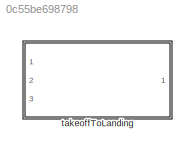
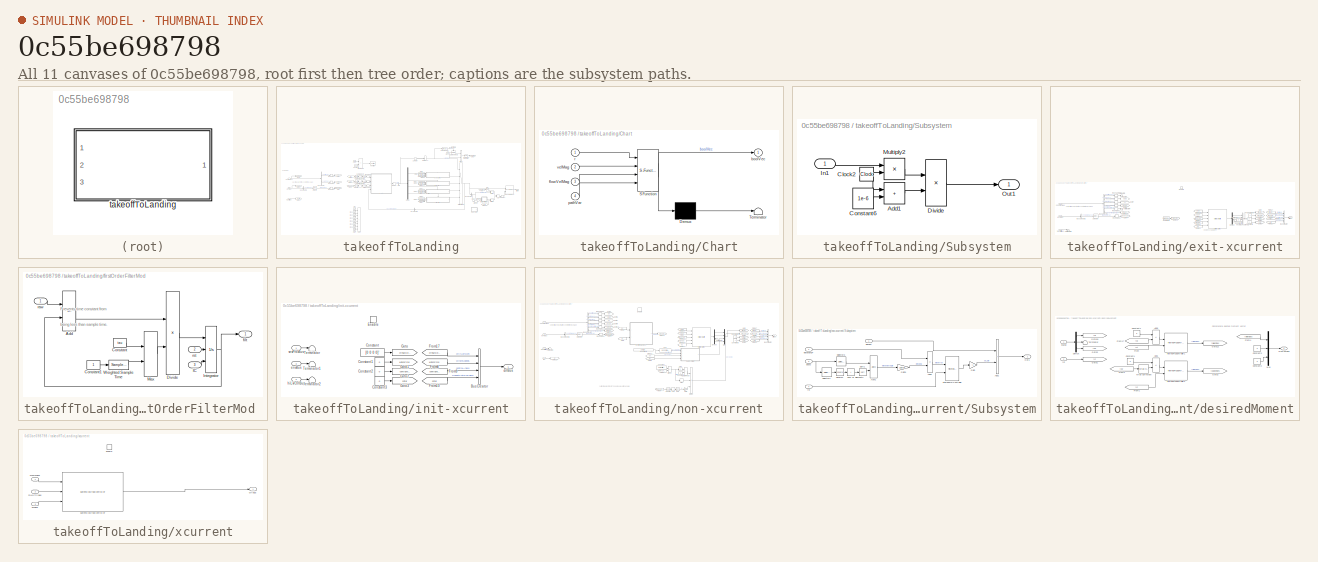
[diagram: thumbnail index - all 11 canvases of the model, root first then tree order]
MODEL slx_0c55be698798
KIND library
CONFIG AbsTol = auto
CONFIG EnableMultiTasking = off
CONFIG FixedStep = auto
CONFIG MaxStep = auto
CONFIG MinStep = auto
CONFIG RelTol = 1e-3
CONFIG SampleTimeConstraint = Unconstrained
CONFIG Solver = VariableStepAuto
CONFIG SolverName = VariableStepAuto
CONFIG StartTime = 0.0
CONFIG StopTime = 10.0
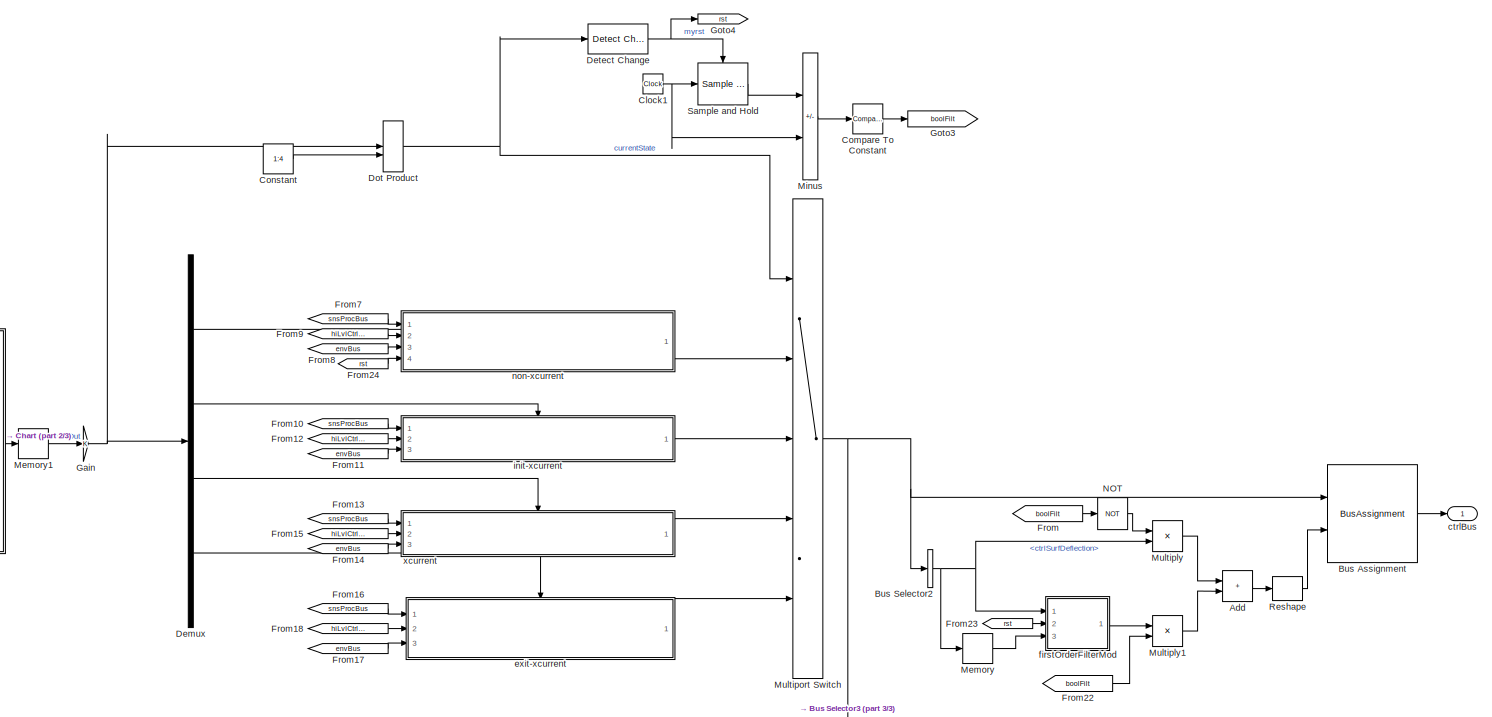
[diagram: takeoffToLanding - part 1/3, middle right region]
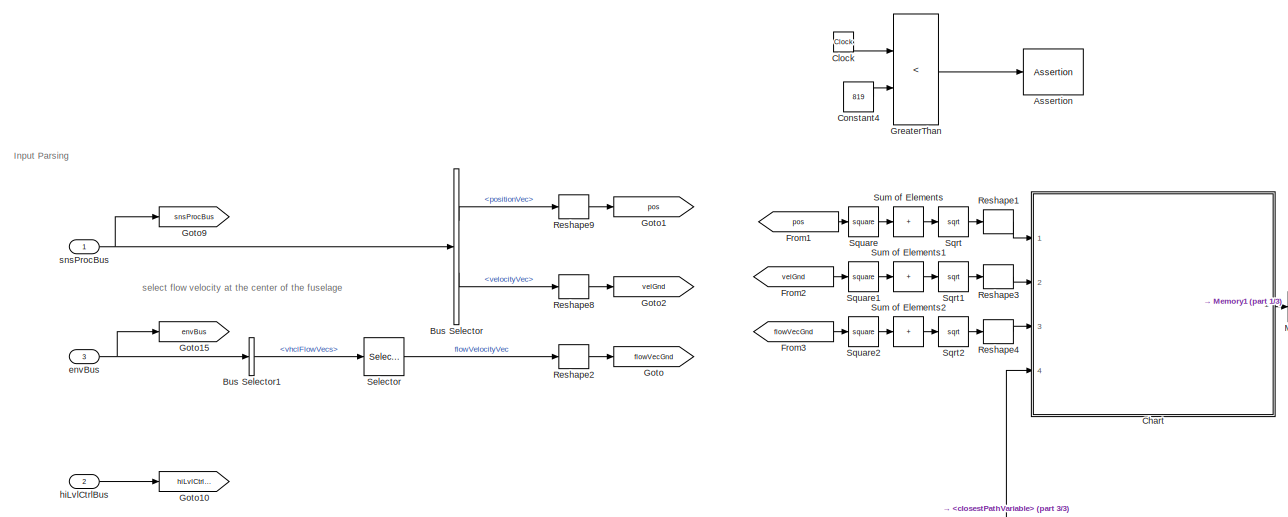
[diagram: takeoffToLanding - part 2/3, middle left region]
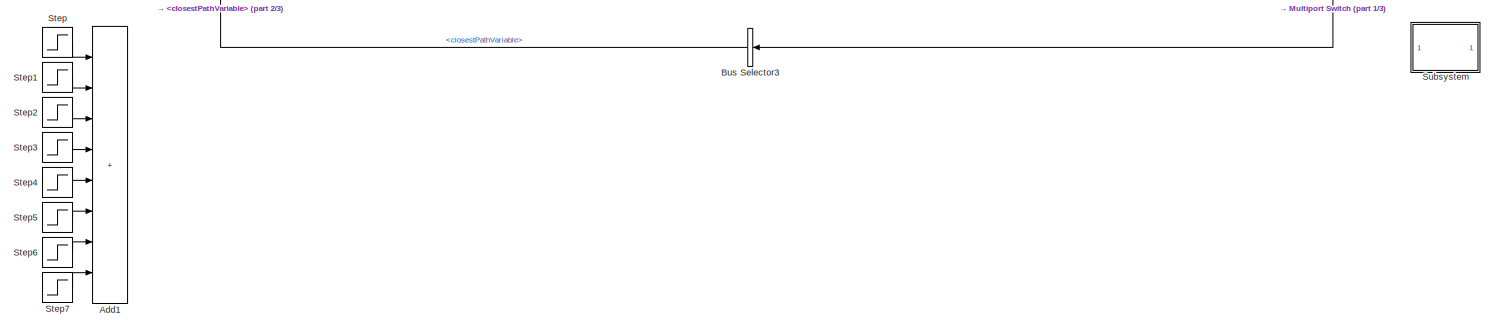
[diagram: takeoffToLanding - part 3/3, bottom center region]
BLOCK [SubSystem] takeoffToLanding
  InitFcn = initializeBussesFromBlock(gcb)
  LoadFcn = initializeBussesFromBlock(gcb)
  MinAlgLoopOccurrences = on
  Ports = [3, 1]
  RequestExecContextInheritance = off
  StartFcn = initializeBussesFromBlock(gcb)
  VariantControl = strcmpi(FLIGHTCONTROLLER,'takeoffToLanding')
BLOCK [Sum] takeoffToLanding/Add
  IconShape = rectangular
  Ports = [2, 1]
BLOCK [Sum] takeoffToLanding/Add1
  Commented = on
  IconShape = rectangular
  Inputs = ++++++++
  Ports = [8, 1]
BLOCK [Assertion] takeoffToLanding/Assertion
  AssertionFailFcn = set_param('OCTModel','SimulationCommand','pause')
  Enabled = off
  StopWhenAssertionFail = off
BLOCK [BusAssignment] takeoffToLanding/Bus Assignment
  AssignedSignals = ctrlSurfDeflection
  Ports = [2, 1]
BLOCK [BusSelector] takeoffToLanding/Bus Selector
  OutputSignals = positionVec,velocityVec
  Ports = [1, 2]
BLOCK [BusSelector] takeoffToLanding/Bus Selector1
  OutputSignals = vhclFlowVecs
  Ports = [1, 1]
BLOCK [BusSelector] takeoffToLanding/Bus Selector2
  OutputSignals = ctrlSurfDeflection
  Ports = [1, 1]
BLOCK [BusSelector] takeoffToLanding/Bus Selector3
  OutputSignals = closestPathVariable
  Ports = [1, 1]
BLOCK [SubSystem] takeoffToLanding/Chart
  ErrorFcn = Stateflow.Translate.translate
  PermitHierarchicalResolution = ExplicitOnly
  Ports = [4, 1]
  RequestExecContextInheritance = off
  SFBlockType = Chart
  TreatAsAtomicUnit = on
BLOCK [Demux] takeoffToLanding/Chart/ Demux 
  Outputs = 1
  Ports = [1, 1]
BLOCK [S-Function] takeoffToLanding/Chart/ SFunction 
  EnableBusSupport = off
  FunctionName = sf_sfun
  Parameters = maxR,nonCrossSpoolGain
  PortCounts = [4 2]
  Ports = [4, 2]
  SFcnIsStateOwnerBlock = off
  SFunctionDeploymentMode = off
  Tag = Stateflow S-Function 5
BLOCK [Terminator] takeoffToLanding/Chart/ Terminator 
BLOCK [Outport] takeoffToLanding/Chart/boolVec
  VectorParamsAs1DForOutWhenUnconnected = off
BLOCK [Inport] takeoffToLanding/Chart/flowVelMag
  Port = 3
BLOCK [Inport] takeoffToLanding/Chart/pathVar
  Port = 4
BLOCK [Inport] takeoffToLanding/Chart/r
BLOCK [Inport] takeoffToLanding/Chart/velMag
  Port = 2
BLOCK [Clock] takeoffToLanding/Clock
BLOCK [Clock] takeoffToLanding/Clock1
BLOCK [Reference] takeoffToLanding/Compare To Constant  REF=simulink/Logic and Bit
Operations/Compare
To Constant
  Ports = [1, 1]
  SourceBlock = simulink/Logic and Bit\nOperations/Compare\nTo Constant
  SourceProductBaseCode = SL
  SourceType = Compare To Constant
BLOCK [Constant] takeoffToLanding/Constant
  Value = 1:4
BLOCK [Constant] takeoffToLanding/Constant4
  Value = 819
BLOCK [Demux] takeoffToLanding/Demux
  Ports = [1, 4]
BLOCK [Reference] takeoffToLanding/Detect Change  REF=simulink/Logic and Bit
Operations/Detect
Change
  Ports = [1, 1]
  SourceBlock = simulink/Logic and Bit\nOperations/Detect\nChange
  SourceProductBaseCode = SL
  SourceType = Detect Change
BLOCK [DotProduct] takeoffToLanding/Dot Product
  OutDataTypeStr = Inherit: Inherit via internal rule
BLOCK [From] takeoffToLanding/From
  GotoTag = boolFilt
BLOCK [From] takeoffToLanding/From1
  GotoTag = pos
BLOCK [From] takeoffToLanding/From10
  GotoTag = snsProcBus
BLOCK [From] takeoffToLanding/From11
  GotoTag = envBus
BLOCK [From] takeoffToLanding/From12
  GotoTag = hiLvlCtrlBus
BLOCK [From] takeoffToLanding/From13
  GotoTag = snsProcBus
BLOCK [From] takeoffToLanding/From14
  GotoTag = envBus
BLOCK [From] takeoffToLanding/From15
  GotoTag = hiLvlCtrlBus
BLOCK [From] takeoffToLanding/From16
  GotoTag = snsProcBus
BLOCK [From] takeoffToLanding/From17
  GotoTag = envBus
BLOCK [From] takeoffToLanding/From18
  GotoTag = hiLvlCtrlBus
BLOCK [From] takeoffToLanding/From2
  GotoTag = velGnd
BLOCK [From] takeoffToLanding/From22
  GotoTag = boolFilt
BLOCK [From] takeoffToLanding/From23
  GotoTag = rst
BLOCK [From] takeoffToLanding/From24
  GotoTag = rst
BLOCK [From] takeoffToLanding/From3
  GotoTag = flowVecGnd
BLOCK [From] takeoffToLanding/From7
  GotoTag = snsProcBus
BLOCK [From] takeoffToLanding/From8
  GotoTag = envBus
BLOCK [From] takeoffToLanding/From9
  GotoTag = hiLvlCtrlBus
BLOCK [Gain] takeoffToLanding/Gain
BLOCK [Goto] takeoffToLanding/Goto
  GotoTag = flowVecGnd
BLOCK [Goto] takeoffToLanding/Goto1
  GotoTag = pos
BLOCK [Goto] takeoffToLanding/Goto10
  GotoTag = hiLvlCtrlBus
BLOCK [Goto] takeoffToLanding/Goto15
  GotoTag = envBus
BLOCK [Goto] takeoffToLanding/Goto2
  GotoTag = velGnd
BLOCK [Goto] takeoffToLanding/Goto3
  GotoTag = boolFilt
BLOCK [Goto] takeoffToLanding/Goto4
  GotoTag = rst
BLOCK [Goto] takeoffToLanding/Goto9
  GotoTag = snsProcBus
BLOCK [RelationalOperator] takeoffToLanding/GreaterThan
  InputSameDT = off
  Operator = <
  OutDataTypeStr = boolean
  Ports = [2, 1]
  RndMeth = Simplest
BLOCK [Memory] takeoffToLanding/Memory
  InitialCondition = [0;0;0;0]
BLOCK [Memory] takeoffToLanding/Memory1
  InitialCondition = [1 0 0 0]
BLOCK [Sum] takeoffToLanding/Minus
  IconShape = rectangular
  Inputs = -+
  Ports = [2, 1]
BLOCK [Product] takeoffToLanding/Multiply
  Ports = [2, 1]
BLOCK [Product] takeoffToLanding/Multiply1
  Ports = [2, 1]
BLOCK [MultiPortSwitch] takeoffToLanding/Multiport Switch
  DataPortIndices = {1,2,3,4,5,6}
  DiagnosticForDefault = Warning
  InputSameDT = off
  Inputs = 4
  Ports = [5, 1]
  SaturateOnIntegerOverflow = off
BLOCK [Logic] takeoffToLanding/NOT
  AllPortsSameDT = off
  Operator = NOT
  OutDataTypeStr = boolean
  Ports = [1, 1]
BLOCK [Reshape] takeoffToLanding/Reshape
  Ports = [1, 1]
BLOCK [Reshape] takeoffToLanding/Reshape1
  Ports = [1, 1]
BLOCK [Reshape] takeoffToLanding/Reshape2
  OutputDimensionality = Column vector (2-D)
  Ports = [1, 1]
BLOCK [Reshape] takeoffToLanding/Reshape3
  Ports = [1, 1]
BLOCK [Reshape] takeoffToLanding/Reshape4
  Ports = [1, 1]
BLOCK [Reshape] takeoffToLanding/Reshape8
  OutputDimensionality = Column vector (2-D)
  Ports = [1, 1]
BLOCK [Reshape] takeoffToLanding/Reshape9
  OutputDimensionality = Column vector (2-D)
  Ports = [1, 1]
BLOCK [Reference] takeoffToLanding/Sample and Hold  REF=dspsigops/Sample
and Hold
  Ports = [1, 1, 0, 1]
  SourceBlock = dspsigops/Sample\nand Hold
  SourceProductBaseCode = DS
  SourceType = Sample and Hold
BLOCK [Selector] takeoffToLanding/Selector
  IndexOptions = Select all,Index vector (dialog)
  Indices = [1 3],5
  InputPortWidth = 3
  NumberOfDimensions = 2
  OutputSizes = 1,1
  Ports = [1, 1]
BLOCK [Sqrt] takeoffToLanding/Sqrt
BLOCK [Sqrt] takeoffToLanding/Sqrt1
BLOCK [Sqrt] takeoffToLanding/Sqrt2
BLOCK [Math] takeoffToLanding/Square
  Operator = square
  Ports = [1, 1]
BLOCK [Math] takeoffToLanding/Square1
  Operator = square
  Ports = [1, 1]
BLOCK [Math] takeoffToLanding/Square2
  Operator = square
  Ports = [1, 1]
BLOCK [Step] takeoffToLanding/Step
  Commented = on
  SampleTime = 0
  Time = 250
BLOCK [Step] takeoffToLanding/Step1
  Commented = on
  SampleTime = 0
  Time = 260
BLOCK [Step] takeoffToLanding/Step2
  Commented = on
  SampleTime = 0
  Time = 580
BLOCK [Step] takeoffToLanding/Step3
  After = -3
  Commented = on
  SampleTime = 0
  Time = 600
BLOCK [Step] takeoffToLanding/Step4
  Commented = on
  SampleTime = 0
  Time = 900
BLOCK [Step] takeoffToLanding/Step5
  Commented = on
  SampleTime = 0
  Time = 910
BLOCK [Step] takeoffToLanding/Step6
  Commented = on
  SampleTime = 0
  Time = 1230
BLOCK [Step] takeoffToLanding/Step7
  After = -3
  Commented = on
  SampleTime = 0
  Time = 1250
BLOCK [SubSystem] takeoffToLanding/Subsystem
  Commented = on
  Ports = [1, 1]
  RequestExecContextInheritance = off
BLOCK [Sum] takeoffToLanding/Subsystem/Add1
  IconShape = rectangular
  Ports = [2, 1]
BLOCK [Clock] takeoffToLanding/Subsystem/Clock2
BLOCK [Constant] takeoffToLanding/Subsystem/Constant6
  Value = 1e-6
BLOCK [Product] takeoffToLanding/Subsystem/Divide
  Inputs = */
  Ports = [2, 1]
BLOCK [Inport] takeoffToLanding/Subsystem/In1
BLOCK [Product] takeoffToLanding/Subsystem/Multiply2
  Ports = [2, 1]
BLOCK [Outport] takeoffToLanding/Subsystem/Out1
  VectorParamsAs1DForOutWhenUnconnected = off
BLOCK [Sum] takeoffToLanding/Sum of Elements
  IconShape = rectangular
  Inputs = +
  Ports = [1, 1]
BLOCK [Sum] takeoffToLanding/Sum of Elements1
  IconShape = rectangular
  Inputs = +
  Ports = [1, 1]
BLOCK [Sum] takeoffToLanding/Sum of Elements2
  IconShape = rectangular
  Inputs = +
  Ports = [1, 1]
BLOCK [Outport] takeoffToLanding/ctrlBus
  OutDataTypeStr = Bus: fltCtrlBus
  VectorParamsAs1DForOutWhenUnconnected = off
BLOCK [Inport] takeoffToLanding/envBus
  OutDataTypeStr = Bus: envBus
  Port = 3
BLOCK [SubSystem] takeoffToLanding/exit-xcurrent
  Ports = [3, 1, 1]
  RequestExecContextInheritance = off
  TreatAsAtomicUnit = on
BLOCK [BusCreator] takeoffToLanding/exit-xcurrent/Bus Creator
  DisplayOption = bar
  InheritFromInputs = off
  Inputs = 4
  OutDataTypeStr = Bus: fltCtrlBus
  Ports = [4, 1]
BLOCK [BusSelector] takeoffToLanding/exit-xcurrent/Bus Selector
  OutputSignals = positionVec,velocityVec,eulerAngles,angularVel,gndStnPositionVec,avgTetherLength
  Ports = [1, 6]
BLOCK [BusSelector] takeoffToLanding/exit-xcurrent/Bus Selector1
  OutputSignals = vhclFlowVecs
  Ports = [1, 1]
BLOCK [Constant] takeoffToLanding/exit-xcurrent/Constant1
  Value = 0
BLOCK [Constant] takeoffToLanding/exit-xcurrent/Constant2
  Value = 0
BLOCK [Constant] takeoffToLanding/exit-xcurrent/Constant3
  Value = 0
BLOCK [Constant] takeoffToLanding/exit-xcurrent/Constant4
  Value = zeros(3,1)
BLOCK [Constant] takeoffToLanding/exit-xcurrent/Constant5
  Value = 25
BLOCK [Demux] takeoffToLanding/exit-xcurrent/Demux
  Ports = [1, 4]
BLOCK [EnablePort] takeoffToLanding/exit-xcurrent/Enable
  Ports = []
BLOCK [From] takeoffToLanding/exit-xcurrent/From10
  GotoTag = sStar
BLOCK [From] takeoffToLanding/exit-xcurrent/From12
  GotoTag = flowVecGnd
BLOCK [From] takeoffToLanding/exit-xcurrent/From14
  GotoTag = velGnd
BLOCK [From] takeoffToLanding/exit-xcurrent/From17
  GotoTag = ctrlSurDefl
BLOCK [From] takeoffToLanding/exit-xcurrent/From18
  GotoTag = MDesBdy
BLOCK [From] takeoffToLanding/exit-xcurrent/From24
  GotoTag = eul
BLOCK [From] takeoffToLanding/exit-xcurrent/From7
  GotoTag = angVel
BLOCK [From] takeoffToLanding/exit-xcurrent/From8
  GotoTag = winchCmd
BLOCK [From] takeoffToLanding/exit-xcurrent/From9
  GotoTag = centralAngle
BLOCK [Goto] takeoffToLanding/exit-xcurrent/Goto
  GotoTag = ctrlSurDefl
BLOCK [Goto] takeoffToLanding/exit-xcurrent/Goto1
  GotoTag = winchCmd
BLOCK [Goto] takeoffToLanding/exit-xcurrent/Goto11
  Commented = on
  GotoTag = tetherLength
BLOCK [Goto] takeoffToLanding/exit-xcurrent/Goto13
  GotoTag = MDesBdy
BLOCK [Goto] takeoffToLanding/exit-xcurrent/Goto2
  GotoTag = centralAngle
BLOCK [Goto] takeoffToLanding/exit-xcurrent/Goto3
  GotoTag = sStar
BLOCK [Goto] takeoffToLanding/exit-xcurrent/Goto4
  GotoTag = flowVecGnd
BLOCK [Goto] takeoffToLanding/exit-xcurrent/Goto6
  GotoTag = velGnd
BLOCK [Goto] takeoffToLanding/exit-xcurrent/Goto7
  GotoTag = eul
BLOCK [Goto] takeoffToLanding/exit-xcurrent/Goto8
  GotoTag = angVel
BLOCK [Reshape] takeoffToLanding/exit-xcurrent/Reshape1
  OutputDimensionality = Column vector (2-D)
  Ports = [1, 1]
BLOCK [Reshape] takeoffToLanding/exit-xcurrent/Reshape2
  OutputDimensionality = Column vector (2-D)
  Ports = [1, 1]
BLOCK [Reshape] takeoffToLanding/exit-xcurrent/Reshape6
  OutputDimensionality = Column vector (2-D)
  Ports = [1, 1]
BLOCK [Reshape] takeoffToLanding/exit-xcurrent/Reshape7
  OutputDimensionality = Column vector (2-D)
  Ports = [1, 1]
BLOCK [Reshape] takeoffToLanding/exit-xcurrent/Reshape8
  OutputDimensionality = Column vector (2-D)
  Ports = [1, 1]
BLOCK [Reshape] takeoffToLanding/exit-xcurrent/Reshape9
  OutputDimensionality = Column vector (2-D)
  Ports = [1, 1]
BLOCK [Selector] takeoffToLanding/exit-xcurrent/Selector
  IndexOptions = Select all,Index vector (dialog)
  Indices = [1 3],5
  InputPortWidth = 3
  NumberOfDimensions = 2
  OutputSizes = 1,1
  Ports = [1, 1]
BLOCK [Terminator] takeoffToLanding/exit-xcurrent/Terminator
BLOCK [Terminator] takeoffToLanding/exit-xcurrent/Terminator3
BLOCK [Terminator] takeoffToLanding/exit-xcurrent/Terminator4
BLOCK [Terminator] takeoffToLanding/exit-xcurrent/Terminator5
BLOCK [Concatenate] takeoffToLanding/exit-xcurrent/Vector Concatenate
  NumInputs = 4
  Ports = [4, 1]
BLOCK [Reference] takeoffToLanding/exit-xcurrent/ctrlAllocation  REF=ctrlAllocMatrix_cl/ctrlAllocMatrix
  Ports = [5, 1]
  SourceBlock = ctrlAllocMatrix_cl/ctrlAllocMatrix
BLOCK [Outport] takeoffToLanding/exit-xcurrent/ctrlBus
  OutDataTypeStr = Bus: fltCtrlBus
  VectorParamsAs1DForOutWhenUnconnected = off
BLOCK [Inport] takeoffToLanding/exit-xcurrent/envBus
  OutDataTypeStr = Bus: envBus
  Port = 3
BLOCK [Inport] takeoffToLanding/exit-xcurrent/hiLvlCtrlBus
  OutDataTypeStr = Bus: hiLvlCtrlBus
  Port = 2
BLOCK [Inport] takeoffToLanding/exit-xcurrent/snsProcBus
  OutDataTypeStr = Bus: sensorsProcessingBus
BLOCK [SubSystem] takeoffToLanding/firstOrderFilterMod 
  MinAlgLoopOccurrences = on
  Ports = [3, 1]
  RequestExecContextInheritance = off
  TreatAsAtomicUnit = on
BLOCK [Sum] takeoffToLanding/firstOrderFilterMod /Add
  IconShape = rectangular
  Inputs = +-
  Ports = [2, 1]
BLOCK [Constant] takeoffToLanding/firstOrderFilterMod /Constant
  Value = tau
BLOCK [Constant] takeoffToLanding/firstOrderFilterMod /Constant1
BLOCK [Product] takeoffToLanding/firstOrderFilterMod /Divide
  Inputs = */
  Ports = [2, 1]
BLOCK [Inport] takeoffToLanding/firstOrderFilterMod /IC
  Port = 3
BLOCK [Integrator] takeoffToLanding/firstOrderFilterMod /Integrator
  ExternalReset = rising
  InitialCondition = ic
  InitialConditionSource = external
  Ports = [3, 1]
BLOCK [MinMax] takeoffToLanding/firstOrderFilterMod /Max
  Function = max
  Inputs = 2
  Ports = [2, 1]
BLOCK [SampleTimeMath] takeoffToLanding/firstOrderFilterMod /Weighted Sample Time
  TsampMathOp = Ts Only
BLOCK [Outport] takeoffToLanding/firstOrderFilterMod /filt
  VectorParamsAs1DForOutWhenUnconnected = off
BLOCK [Inport] takeoffToLanding/firstOrderFilterMod /raw
BLOCK [Inport] takeoffToLanding/firstOrderFilterMod /rst
  Port = 2
BLOCK [Inport] takeoffToLanding/hiLvlCtrlBus
  OutDataTypeStr = Bus: hiLvlCtrlBus
  Port = 2
BLOCK [SubSystem] takeoffToLanding/init-xcurrent
  Ports = [3, 1, 1]
  RequestExecContextInheritance = off
  TreatAsAtomicUnit = on
BLOCK [BusCreator] takeoffToLanding/init-xcurrent/Bus Creator
  DisplayOption = bar
  InheritFromInputs = off
  Inputs = 4
  OutDataTypeStr = Bus: fltCtrlBus
  Ports = [4, 1]
BLOCK [Constant] takeoffToLanding/init-xcurrent/Constant
  Value = [0 0 0 0]'
BLOCK [Constant] takeoffToLanding/init-xcurrent/Constant1
  Value = 0
BLOCK [Constant] takeoffToLanding/init-xcurrent/Constant2
  Value = 0
BLOCK [Constant] takeoffToLanding/init-xcurrent/Constant3
  Value = 0
BLOCK [EnablePort] takeoffToLanding/init-xcurrent/Enable
  Ports = []
BLOCK [From] takeoffToLanding/init-xcurrent/From10
  GotoTag = sStar
BLOCK [From] takeoffToLanding/init-xcurrent/From17
  GotoTag = ctrlSurDefl
BLOCK [From] takeoffToLanding/init-xcurrent/From8
  GotoTag = winchCmd
BLOCK [From] takeoffToLanding/init-xcurrent/From9
  GotoTag = centralAngle
BLOCK [Goto] takeoffToLanding/init-xcurrent/Goto
  GotoTag = ctrlSurDefl
BLOCK [Goto] takeoffToLanding/init-xcurrent/Goto1
  GotoTag = winchCmd
BLOCK [Goto] takeoffToLanding/init-xcurrent/Goto2
  GotoTag = centralAngle
BLOCK [Goto] takeoffToLanding/init-xcurrent/Goto3
  GotoTag = sStar
BLOCK [Terminator] takeoffToLanding/init-xcurrent/Terminator
BLOCK [Terminator] takeoffToLanding/init-xcurrent/Terminator1
BLOCK [Terminator] takeoffToLanding/init-xcurrent/Terminator2
BLOCK [Outport] takeoffToLanding/init-xcurrent/ctrlBus
  OutDataTypeStr = Bus: fltCtrlBus
  VectorParamsAs1DForOutWhenUnconnected = off
BLOCK [Inport] takeoffToLanding/init-xcurrent/envBus
  OutDataTypeStr = Bus: envBus
  Port = 3
BLOCK [Inport] takeoffToLanding/init-xcurrent/hiLvlCtrlBus
  OutDataTypeStr = Bus: hiLvlCtrlBus
  Port = 2
BLOCK [Inport] takeoffToLanding/init-xcurrent/snsProcBus
  OutDataTypeStr = Bus: sensorsProcessingBus
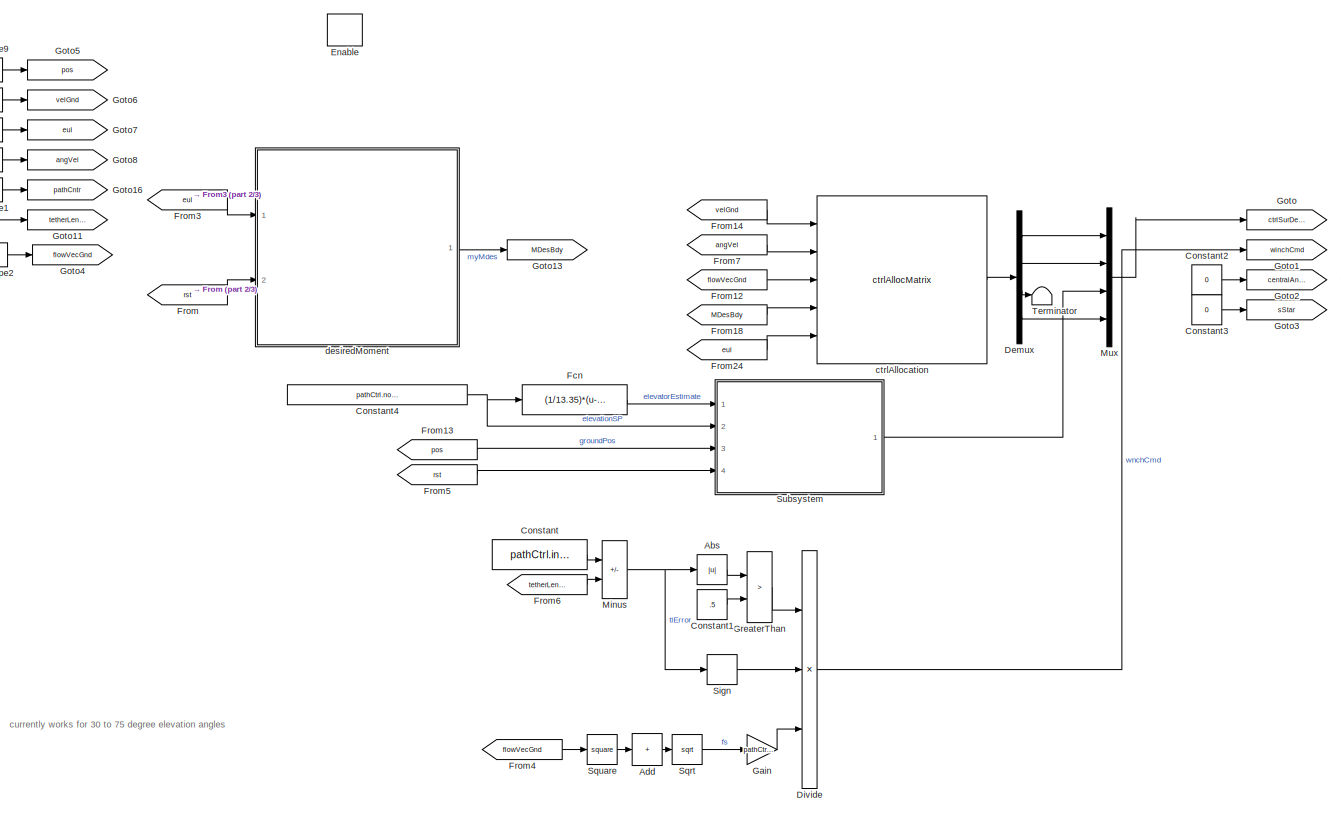
[diagram: takeoffToLanding/non-xcurrent - part 1/3, center side, full height]
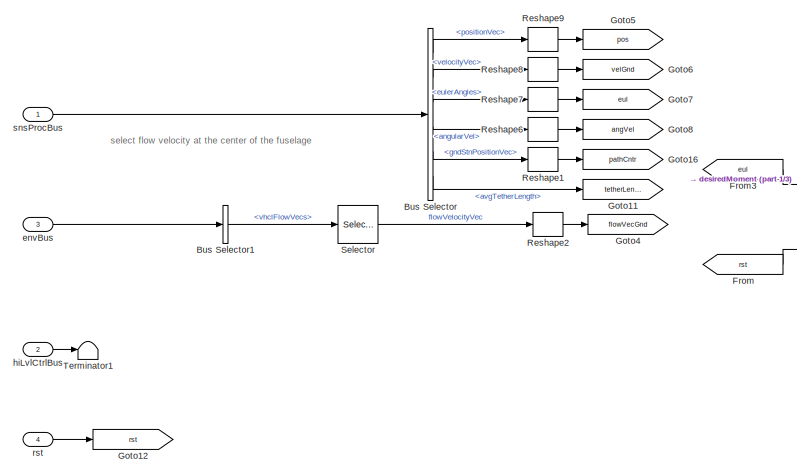
[diagram: takeoffToLanding/non-xcurrent - part 2/3, middle left region]
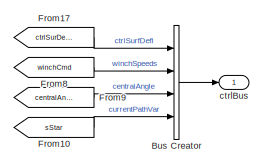
[diagram: takeoffToLanding/non-xcurrent - part 3/3, middle right region]
BLOCK [SubSystem] takeoffToLanding/non-xcurrent
  Ports = [4, 1, 1]
  RequestExecContextInheritance = off
  TreatAsAtomicUnit = on
BLOCK [Abs] takeoffToLanding/non-xcurrent/Abs
  SaturateOnIntegerOverflow = off
BLOCK [Sum] takeoffToLanding/non-xcurrent/Add
  IconShape = rectangular
  Inputs = +
  Ports = [1, 1]
BLOCK [BusCreator] takeoffToLanding/non-xcurrent/Bus Creator
  DisplayOption = bar
  InheritFromInputs = off
  Inputs = 4
  OutDataTypeStr = Bus: fltCtrlBus
  Ports = [4, 1]
BLOCK [BusSelector] takeoffToLanding/non-xcurrent/Bus Selector
  OutputSignals = positionVec,velocityVec,eulerAngles,angularVel,gndStnPositionVec,avgTetherLength
  Ports = [1, 6]
BLOCK [BusSelector] takeoffToLanding/non-xcurrent/Bus Selector1
  OutputSignals = vhclFlowVecs
  Ports = [1, 1]
BLOCK [Constant] takeoffToLanding/non-xcurrent/Constant
  Value = pathCtrl.initTL.Value
BLOCK [Constant] takeoffToLanding/non-xcurrent/Constant1
  Value = .5
BLOCK [Constant] takeoffToLanding/non-xcurrent/Constant2
  Value = 0
BLOCK [Constant] takeoffToLanding/non-xcurrent/Constant3
  Value = 0
BLOCK [Constant] takeoffToLanding/non-xcurrent/Constant4
  Value = pathCtrl.nonXCurrentElevation.Value
BLOCK [Demux] takeoffToLanding/non-xcurrent/Demux
  Ports = [1, 4]
BLOCK [Product] takeoffToLanding/non-xcurrent/Divide
  Inputs = ***
  Ports = [3, 1]
BLOCK [EnablePort] takeoffToLanding/non-xcurrent/Enable
  Ports = []
BLOCK [Fcn] takeoffToLanding/non-xcurrent/Fcn
  Expr = (1/13.35)*(u-58)+23
BLOCK [From] takeoffToLanding/non-xcurrent/From
  GotoTag = rst
BLOCK [From] takeoffToLanding/non-xcurrent/From10
  GotoTag = sStar
BLOCK [From] takeoffToLanding/non-xcurrent/From12
  GotoTag = flowVecGnd
BLOCK [From] takeoffToLanding/non-xcurrent/From13
  GotoTag = pos
BLOCK [From] takeoffToLanding/non-xcurrent/From14
  GotoTag = velGnd
BLOCK [From] takeoffToLanding/non-xcurrent/From17
  GotoTag = ctrlSurDefl
BLOCK [From] takeoffToLanding/non-xcurrent/From18
  GotoTag = MDesBdy
BLOCK [From] takeoffToLanding/non-xcurrent/From24
  GotoTag = eul
BLOCK [From] takeoffToLanding/non-xcurrent/From3
  GotoTag = eul
BLOCK [From] takeoffToLanding/non-xcurrent/From4
  GotoTag = flowVecGnd
BLOCK [From] takeoffToLanding/non-xcurrent/From5
  GotoTag = rst
BLOCK [From] takeoffToLanding/non-xcurrent/From6
  GotoTag = tetherLength
BLOCK [From] takeoffToLanding/non-xcurrent/From7
  GotoTag = angVel
BLOCK [From] takeoffToLanding/non-xcurrent/From8
  GotoTag = winchCmd
BLOCK [From] takeoffToLanding/non-xcurrent/From9
  GotoTag = centralAngle
BLOCK [Gain] takeoffToLanding/non-xcurrent/Gain
  Gain = pathCtrl.nonXCurrentSpoolInGain.Value
BLOCK [Goto] takeoffToLanding/non-xcurrent/Goto
  GotoTag = ctrlSurDefl
BLOCK [Goto] takeoffToLanding/non-xcurrent/Goto1
  GotoTag = winchCmd
BLOCK [Goto] takeoffToLanding/non-xcurrent/Goto11
  GotoTag = tetherLength
BLOCK [Goto] takeoffToLanding/non-xcurrent/Goto12
  GotoTag = rst
BLOCK [Goto] takeoffToLanding/non-xcurrent/Goto13
  GotoTag = MDesBdy
BLOCK [Goto] takeoffToLanding/non-xcurrent/Goto16
  Commented = on
  GotoTag = pathCntr
BLOCK [Goto] takeoffToLanding/non-xcurrent/Goto2
  GotoTag = centralAngle
BLOCK [Goto] takeoffToLanding/non-xcurrent/Goto3
  GotoTag = sStar
BLOCK [Goto] takeoffToLanding/non-xcurrent/Goto4
  GotoTag = flowVecGnd
BLOCK [Goto] takeoffToLanding/non-xcurrent/Goto5
  GotoTag = pos
BLOCK [Goto] takeoffToLanding/non-xcurrent/Goto6
  GotoTag = velGnd
BLOCK [Goto] takeoffToLanding/non-xcurrent/Goto7
  GotoTag = eul
BLOCK [Goto] takeoffToLanding/non-xcurrent/Goto8
  GotoTag = angVel
BLOCK [RelationalOperator] takeoffToLanding/non-xcurrent/GreaterThan
  InputSameDT = off
  Operator = >
  OutDataTypeStr = boolean
  Ports = [2, 1]
  RndMeth = Simplest
BLOCK [Sum] takeoffToLanding/non-xcurrent/Minus
  IconShape = rectangular
  Inputs = +-
  Ports = [2, 1]
BLOCK [Mux] takeoffToLanding/non-xcurrent/Mux
  DisplayOption = bar
  Ports = [4, 1]
BLOCK [Reshape] takeoffToLanding/non-xcurrent/Reshape1
  OutputDimensionality = Column vector (2-D)
  Ports = [1, 1]
BLOCK [Reshape] takeoffToLanding/non-xcurrent/Reshape2
  OutputDimensionality = Column vector (2-D)
  Ports = [1, 1]
BLOCK [Reshape] takeoffToLanding/non-xcurrent/Reshape6
  OutputDimensionality = Column vector (2-D)
  Ports = [1, 1]
BLOCK [Reshape] takeoffToLanding/non-xcurrent/Reshape7
  OutputDimensionality = Column vector (2-D)
  Ports = [1, 1]
BLOCK [Reshape] takeoffToLanding/non-xcurrent/Reshape8
  OutputDimensionality = Column vector (2-D)
  Ports = [1, 1]
BLOCK [Reshape] takeoffToLanding/non-xcurrent/Reshape9
  OutputDimensionality = Column vector (2-D)
  Ports = [1, 1]
BLOCK [Selector] takeoffToLanding/non-xcurrent/Selector
  IndexOptions = Select all,Index vector (dialog)
  Indices = [1 3],5
  InputPortWidth = 3
  NumberOfDimensions = 2
  OutputSizes = 1,1
  Ports = [1, 1]
BLOCK [Signum] takeoffToLanding/non-xcurrent/Sign
BLOCK [Sqrt] takeoffToLanding/non-xcurrent/Sqrt
BLOCK [Math] takeoffToLanding/non-xcurrent/Square
  Operator = square
  Ports = [1, 1]
  SignedPower = on
BLOCK [SubSystem] takeoffToLanding/non-xcurrent/Subsystem
  Ports = [4, 1]
  RequestExecContextInheritance = off
BLOCK [Sum] takeoffToLanding/non-xcurrent/Subsystem/Add1
  IconShape = rectangular
  Ports = [2, 1]
BLOCK [Sum] takeoffToLanding/non-xcurrent/Subsystem/Add5
  IconShape = rectangular
  Inputs = +-
  Ports = [2, 1]
BLOCK [Trigonometry] takeoffToLanding/non-xcurrent/Subsystem/Atan1
  Operator = atan2
  Ports = [2, 1]
BLOCK [Gain] takeoffToLanding/non-xcurrent/Subsystem/Gain
  Gain = -1
BLOCK [Gain] takeoffToLanding/non-xcurrent/Subsystem/Gain3
  Gain = 180/pi
BLOCK [Outport] takeoffToLanding/non-xcurrent/Subsystem/Out1
  VectorParamsAs1DForOutWhenUnconnected = off
BLOCK [Selector] takeoffToLanding/non-xcurrent/Subsystem/Selector2
  IndexOptions = Index vector (dialog)
  Indices = [1 2]
  InputPortWidth = 3
  OutputSizes = 1
  Ports = [1, 1]
BLOCK [Selector] takeoffToLanding/non-xcurrent/Subsystem/Selector3
  IndexOptions = Index vector (dialog)
  Indices = 3
  InputPortWidth = 3
  OutputSizes = 1
  Ports = [1, 1]
BLOCK [Sqrt] takeoffToLanding/non-xcurrent/Subsystem/Sqrt1
BLOCK [Math] takeoffToLanding/non-xcurrent/Subsystem/Square1
  Operator = square
  Ports = [1, 1]
  SignedPower = on
BLOCK [Sum] takeoffToLanding/non-xcurrent/Subsystem/Sum of Elements
  IconShape = rectangular
  Inputs = +
  Ports = [1, 1]
BLOCK [Inport] takeoffToLanding/non-xcurrent/Subsystem/elevEst
BLOCK [Inport] takeoffToLanding/non-xcurrent/Subsystem/elevationSP
  Port = 2
BLOCK [Reference] takeoffToLanding/non-xcurrent/Subsystem/filteredPIDController  REF=filteredPIDController_ul/filteredPIDController
  Ports = [2, 1]
  SourceBlock = filteredPIDController_ul/filteredPIDController
BLOCK [Inport] takeoffToLanding/non-xcurrent/Subsystem/posG
  Port = 3
BLOCK [Inport] takeoffToLanding/non-xcurrent/Subsystem/rst 
  Port = 4
BLOCK [Terminator] takeoffToLanding/non-xcurrent/Terminator
BLOCK [Terminator] takeoffToLanding/non-xcurrent/Terminator1
BLOCK [Reference] takeoffToLanding/non-xcurrent/ctrlAllocation  REF=ctrlAllocMatrix_cl/ctrlAllocMatrix
  Ports = [5, 1]
  SourceBlock = ctrlAllocMatrix_cl/ctrlAllocMatrix
BLOCK [Outport] takeoffToLanding/non-xcurrent/ctrlBus
  OutDataTypeStr = Bus: fltCtrlBus
  VectorParamsAs1DForOutWhenUnconnected = off
BLOCK [SubSystem] takeoffToLanding/non-xcurrent/desiredMoment
  Ports = [2, 1]
  RequestExecContextInheritance = off
BLOCK [Sum] takeoffToLanding/non-xcurrent/desiredMoment/Add1
  Commented = on
  IconShape = rectangular
  Inputs = +-
  Ports = [2, 1]
BLOCK [Sum] takeoffToLanding/non-xcurrent/desiredMoment/Add6
  IconShape = rectangular
  Inputs = +-
  Ports = [2, 1]
BLOCK [Constant] takeoffToLanding/non-xcurrent/desiredMoment/Constant1
  Commented = on
  Value = 0
BLOCK [Constant] takeoffToLanding/non-xcurrent/desiredMoment/Constant2
  Value = 0
BLOCK [Constant] takeoffToLanding/non-xcurrent/desiredMoment/Constant3
  Value = 0
BLOCK [Constant] takeoffToLanding/non-xcurrent/desiredMoment/Constant4
  Value = 0
BLOCK [Demux] takeoffToLanding/non-xcurrent/desiredMoment/Demux
  Outputs = 3
  Ports = [1, 3]
BLOCK [From] takeoffToLanding/non-xcurrent/desiredMoment/From
  GotoTag = rst
BLOCK [From] takeoffToLanding/non-xcurrent/desiredMoment/From1
  Commented = on
  GotoTag = rst
BLOCK [From] takeoffToLanding/non-xcurrent/desiredMoment/From17
  GotoTag = roll
BLOCK [From] takeoffToLanding/non-xcurrent/desiredMoment/From2
  Commented = on
  GotoTag = yaw
BLOCK [From] takeoffToLanding/non-xcurrent/desiredMoment/From4
  GotoTag = rollMomDes
BLOCK [Goto] takeoffToLanding/non-xcurrent/desiredMoment/Goto1
  GotoTag = rst
BLOCK [Goto] takeoffToLanding/non-xcurrent/desiredMoment/Goto12
  GotoTag = rollMomDes
BLOCK [Goto] takeoffToLanding/non-xcurrent/desiredMoment/Goto15
  GotoTag = roll
BLOCK [Goto] takeoffToLanding/non-xcurrent/desiredMoment/Goto2
  Commented = on
  GotoTag = yawMomDes
BLOCK [Goto] takeoffToLanding/non-xcurrent/desiredMoment/Goto3
  Commented = on
  GotoTag = yaw
BLOCK [Mux] takeoffToLanding/non-xcurrent/desiredMoment/Mux
  DisplayOption = bar
  Inputs = 3
  Ports = [3, 1]
BLOCK [Terminator] takeoffToLanding/non-xcurrent/desiredMoment/Terminator
BLOCK [Reference] takeoffToLanding/non-xcurrent/desiredMoment/Wrap Correction  REF=setpointToOutput_cl/desiredMoment/Wrap
Correction
  Commented = on
  Ports = [1, 1]
  SourceBlock = setpointToOutput_cl/desiredMoment/Wrap\nCorrection
  SourceType = SubSystem
BLOCK [Inport] takeoffToLanding/non-xcurrent/desiredMoment/eulAng
BLOCK [Reference] takeoffToLanding/non-xcurrent/desiredMoment/filteredPIDController1  REF=filteredPIDController_ul/filteredPIDController
  Ports = [2, 1]
  SourceBlock = filteredPIDController_ul/filteredPIDController
BLOCK [Reference] takeoffToLanding/non-xcurrent/desiredMoment/filteredPIDController2  REF=filteredPIDController_ul/filteredPIDController
  Commented = on
  Ports = [2, 1]
  SourceBlock = filteredPIDController_ul/filteredPIDController
BLOCK [Outport] takeoffToLanding/non-xcurrent/desiredMoment/momVecDes
  VectorParamsAs1DForOutWhenUnconnected = off
BLOCK [Inport] takeoffToLanding/non-xcurrent/desiredMoment/rst
  Port = 2
BLOCK [Inport] takeoffToLanding/non-xcurrent/envBus
  OutDataTypeStr = Bus: envBus
  Port = 3
BLOCK [Inport] takeoffToLanding/non-xcurrent/hiLvlCtrlBus
  OutDataTypeStr = Bus: hiLvlCtrlBus
  Port = 2
BLOCK [Inport] takeoffToLanding/non-xcurrent/rst 
  Port = 4
BLOCK [Inport] takeoffToLanding/non-xcurrent/snsProcBus
  OutDataTypeStr = Bus: sensorsProcessingBus
BLOCK [Inport] takeoffToLanding/snsProcBus
  OutDataTypeStr = Bus: sensorsProcessingBus
BLOCK [SubSystem] takeoffToLanding/xcurrent
  Ports = [3, 1, 1]
  RequestExecContextInheritance = off
  TreatAsAtomicUnit = on
BLOCK [EnablePort] takeoffToLanding/xcurrent/Enable
  Ports = []
BLOCK [Outport] takeoffToLanding/xcurrent/ctrlBus
  OutDataTypeStr = Bus: fltCtrlBus
  VectorParamsAs1DForOutWhenUnconnected = off
BLOCK [Inport] takeoffToLanding/xcurrent/envBus
  OutDataTypeStr = Bus: envBus
  Port = 3
BLOCK [Inport] takeoffToLanding/xcurrent/hiLvlCtrlBus
  OutDataTypeStr = Bus: hiLvlCtrlBus
  Port = 2
BLOCK [Reference] takeoffToLanding/xcurrent/pathFollowingController  REF=pathFollowingController_cl/pathFollowingController
  Ports = [3, 1]
  SourceBlock = pathFollowingController_cl/pathFollowingController
BLOCK [Inport] takeoffToLanding/xcurrent/snsProcBus
  OutDataTypeStr = Bus: sensorsProcessingBus
ANNOTATION takeoffToLanding: Input Parsing
ANNOTATION takeoffToLanding: select flow velocity at the center of the fuselage
ANNOTATION takeoffToLanding/exit-xcurrent: degrees vs radians
ANNOTATION takeoffToLanding/exit-xcurrent: select flow velocity at the center of the fuselage
ANNOTATION takeoffToLanding/firstOrderFilterMod : Prevents time constant from being less than sample time.
ANNOTATION takeoffToLanding/non-xcurrent: currently works for 30 to 75 degree elevation angles
ANNOTATION takeoffToLanding/non-xcurrent: select flow velocity at the center of the fuselage
ANNOTATION takeoffToLanding/non-xcurrent/desiredMoment: Concatenate desired moment vector
LINE takeoffToLanding/Add:1 -> takeoffToLanding/Reshape:1
LINE takeoffToLanding/Bus Assignment:1 -> takeoffToLanding/ctrlBus:1
LINE takeoffToLanding/Bus Selector1:1 -> takeoffToLanding/Selector:1
NET takeoffToLanding/Bus Selector2:1 -> takeoffToLanding/Memory:1, takeoffToLanding/Multiply:2, takeoffToLanding/firstOrderFilterMod :1
LINE takeoffToLanding/Bus Selector3:1 -> takeoffToLanding/Chart:4
LINE takeoffToLanding/Bus Selector:1 -> takeoffToLanding/Reshape9:1
LINE takeoffToLanding/Bus Selector:2 -> takeoffToLanding/Reshape8:1
LINE takeoffToLanding/Chart:1 -> takeoffToLanding/Memory1:1
NET takeoffToLanding/Clock1:1 -> takeoffToLanding/Minus:2, takeoffToLanding/Sample and Hold:1
LINE takeoffToLanding/Clock:1 -> takeoffToLanding/GreaterThan:1
LINE takeoffToLanding/Compare To Constant:1 -> takeoffToLanding/Goto3:1
LINE takeoffToLanding/Constant4:1 -> takeoffToLanding/GreaterThan:2
LINE takeoffToLanding/Constant:1 -> takeoffToLanding/Dot Product:2
LINE takeoffToLanding/Demux:1 -> takeoffToLanding/non-xcurrent:enable
LINE takeoffToLanding/Demux:2 -> takeoffToLanding/init-xcurrent:enable
LINE takeoffToLanding/Demux:3 -> takeoffToLanding/xcurrent:enable
LINE takeoffToLanding/Demux:4 -> takeoffToLanding/exit-xcurrent:enable
NET takeoffToLanding/Detect Change:1 -> takeoffToLanding/Goto4:1, takeoffToLanding/Sample and Hold:trigger
NET takeoffToLanding/Dot Product:1 -> takeoffToLanding/Detect Change:1, takeoffToLanding/Multiport Switch:1
LINE takeoffToLanding/From10:1 -> takeoffToLanding/init-xcurrent:1
LINE takeoffToLanding/From11:1 -> takeoffToLanding/init-xcurrent:3
LINE takeoffToLanding/From12:1 -> takeoffToLanding/init-xcurrent:2
LINE takeoffToLanding/From13:1 -> takeoffToLanding/xcurrent:1
LINE takeoffToLanding/From14:1 -> takeoffToLanding/xcurrent:3
LINE takeoffToLanding/From15:1 -> takeoffToLanding/xcurrent:2
LINE takeoffToLanding/From16:1 -> takeoffToLanding/exit-xcurrent:1
LINE takeoffToLanding/From17:1 -> takeoffToLanding/exit-xcurrent:3
LINE takeoffToLanding/From18:1 -> takeoffToLanding/exit-xcurrent:2
LINE takeoffToLanding/From1:1 -> takeoffToLanding/Square:1
LINE takeoffToLanding/From22:1 -> takeoffToLanding/Multiply1:2
LINE takeoffToLanding/From23:1 -> takeoffToLanding/firstOrderFilterMod :2
LINE takeoffToLanding/From24:1 -> takeoffToLanding/non-xcurrent:4
LINE takeoffToLanding/From2:1 -> takeoffToLanding/Square1:1
LINE takeoffToLanding/From3:1 -> takeoffToLanding/Square2:1
LINE takeoffToLanding/From7:1 -> takeoffToLanding/non-xcurrent:1
LINE takeoffToLanding/From8:1 -> takeoffToLanding/non-xcurrent:3
LINE takeoffToLanding/From9:1 -> takeoffToLanding/non-xcurrent:2
LINE takeoffToLanding/From:1 -> takeoffToLanding/NOT:1
NET takeoffToLanding/Gain:1 -> takeoffToLanding/Demux:1, takeoffToLanding/Dot Product:1
LINE takeoffToLanding/GreaterThan:1 -> takeoffToLanding/Assertion:1
LINE takeoffToLanding/Memory1:1 -> takeoffToLanding/Gain:1
LINE takeoffToLanding/Memory:1 -> takeoffToLanding/firstOrderFilterMod :3
LINE takeoffToLanding/Minus:1 -> takeoffToLanding/Compare To Constant:1
LINE takeoffToLanding/Multiply1:1 -> takeoffToLanding/Add:2
LINE takeoffToLanding/Multiply:1 -> takeoffToLanding/Add:1
NET takeoffToLanding/Multiport Switch:1 -> takeoffToLanding/Bus Assignment:1, takeoffToLanding/Bus Selector2:1, takeoffToLanding/Bus Selector3:1
LINE takeoffToLanding/NOT:1 -> takeoffToLanding/Multiply:1
LINE takeoffToLanding/Reshape1:1 -> takeoffToLanding/Chart:1
LINE takeoffToLanding/Reshape2:1 -> takeoffToLanding/Goto:1
LINE takeoffToLanding/Reshape3:1 -> takeoffToLanding/Chart:2
LINE takeoffToLanding/Reshape4:1 -> takeoffToLanding/Chart:3
LINE takeoffToLanding/Reshape8:1 -> takeoffToLanding/Goto2:1
LINE takeoffToLanding/Reshape9:1 -> takeoffToLanding/Goto1:1
LINE takeoffToLanding/Reshape:1 -> takeoffToLanding/Bus Assignment:2
LINE takeoffToLanding/Sample and Hold:1 -> takeoffToLanding/Minus:1
LINE takeoffToLanding/Selector:1 -> takeoffToLanding/Reshape2:1
LINE takeoffToLanding/Sqrt1:1 -> takeoffToLanding/Reshape3:1
LINE takeoffToLanding/Sqrt2:1 -> takeoffToLanding/Reshape4:1
LINE takeoffToLanding/Sqrt:1 -> takeoffToLanding/Reshape1:1
LINE takeoffToLanding/Square1:1 -> takeoffToLanding/Sum of Elements1:1
LINE takeoffToLanding/Square2:1 -> takeoffToLanding/Sum of Elements2:1
LINE takeoffToLanding/Square:1 -> takeoffToLanding/Sum of Elements:1
LINE takeoffToLanding/Step1:1 -> takeoffToLanding/Add1:2
LINE takeoffToLanding/Step2:1 -> takeoffToLanding/Add1:3
LINE takeoffToLanding/Step3:1 -> takeoffToLanding/Add1:4
LINE takeoffToLanding/Step4:1 -> takeoffToLanding/Add1:5
LINE takeoffToLanding/Step5:1 -> takeoffToLanding/Add1:6
LINE takeoffToLanding/Step6:1 -> takeoffToLanding/Add1:7
LINE takeoffToLanding/Step7:1 -> takeoffToLanding/Add1:8
LINE takeoffToLanding/Step:1 -> takeoffToLanding/Add1:1
LINE takeoffToLanding/Subsystem/Add1:1 -> takeoffToLanding/Subsystem/Divide:2
NET takeoffToLanding/Subsystem/Clock2:1 -> takeoffToLanding/Subsystem/Add1:1, takeoffToLanding/Subsystem/Multiply2:2
LINE takeoffToLanding/Subsystem/Constant6:1 -> takeoffToLanding/Subsystem/Add1:2
LINE takeoffToLanding/Subsystem/Divide:1 -> takeoffToLanding/Subsystem/Out1:1
LINE takeoffToLanding/Subsystem/In1:1 -> takeoffToLanding/Subsystem/Multiply2:1
LINE takeoffToLanding/Subsystem/Multiply2:1 -> takeoffToLanding/Subsystem/Divide:1
LINE takeoffToLanding/Sum of Elements1:1 -> takeoffToLanding/Sqrt1:1
LINE takeoffToLanding/Sum of Elements2:1 -> takeoffToLanding/Sqrt2:1
LINE takeoffToLanding/Sum of Elements:1 -> takeoffToLanding/Sqrt:1
NET takeoffToLanding/envBus:1 -> takeoffToLanding/Bus Selector1:1, takeoffToLanding/Goto15:1
LINE takeoffToLanding/exit-xcurrent/Bus Creator:1 -> takeoffToLanding/exit-xcurrent/ctrlBus:1
LINE takeoffToLanding/exit-xcurrent/Bus Selector1:1 -> takeoffToLanding/exit-xcurrent/Selector:1
LINE takeoffToLanding/exit-xcurrent/Bus Selector:1 -> takeoffToLanding/exit-xcurrent/Reshape9:1
LINE takeoffToLanding/exit-xcurrent/Bus Selector:2 -> takeoffToLanding/exit-xcurrent/Reshape8:1
LINE takeoffToLanding/exit-xcurrent/Bus Selector:3 -> takeoffToLanding/exit-xcurrent/Reshape7:1
LINE takeoffToLanding/exit-xcurrent/Bus Selector:4 -> takeoffToLanding/exit-xcurrent/Reshape6:1
LINE takeoffToLanding/exit-xcurrent/Bus Selector:5 -> takeoffToLanding/exit-xcurrent/Reshape1:1
LINE takeoffToLanding/exit-xcurrent/Bus Selector:6 -> takeoffToLanding/exit-xcurrent/Goto11:1
LINE takeoffToLanding/exit-xcurrent/Constant1:1 -> takeoffToLanding/exit-xcurrent/Goto1:1
LINE takeoffToLanding/exit-xcurrent/Constant2:1 -> takeoffToLanding/exit-xcurrent/Goto2:1
LINE takeoffToLanding/exit-xcurrent/Constant3:1 -> takeoffToLanding/exit-xcurrent/Goto3:1
LINE takeoffToLanding/exit-xcurrent/Constant4:1 -> takeoffToLanding/exit-xcurrent/Goto13:1
LINE takeoffToLanding/exit-xcurrent/Constant5:1 -> takeoffToLanding/exit-xcurrent/Vector Concatenate:3
LINE takeoffToLanding/exit-xcurrent/Demux:1 -> takeoffToLanding/exit-xcurrent/Vector Concatenate:1
LINE takeoffToLanding/exit-xcurrent/Demux:2 -> takeoffToLanding/exit-xcurrent/Vector Concatenate:2
LINE takeoffToLanding/exit-xcurrent/Demux:3 -> takeoffToLanding/exit-xcurrent/Terminator:1
LINE takeoffToLanding/exit-xcurrent/Demux:4 -> takeoffToLanding/exit-xcurrent/Vector Concatenate:4
LINE takeoffToLanding/exit-xcurrent/From10:1 -> takeoffToLanding/exit-xcurrent/Bus Creator:4
LINE takeoffToLanding/exit-xcurrent/From12:1 -> takeoffToLanding/exit-xcurrent/ctrlAllocation:3
LINE takeoffToLanding/exit-xcurrent/From14:1 -> takeoffToLanding/exit-xcurrent/ctrlAllocation:1
LINE takeoffToLanding/exit-xcurrent/From17:1 -> takeoffToLanding/exit-xcurrent/Bus Creator:1
LINE takeoffToLanding/exit-xcurrent/From18:1 -> takeoffToLanding/exit-xcurrent/ctrlAllocation:4
LINE takeoffToLanding/exit-xcurrent/From24:1 -> takeoffToLanding/exit-xcurrent/ctrlAllocation:5
LINE takeoffToLanding/exit-xcurrent/From7:1 -> takeoffToLanding/exit-xcurrent/ctrlAllocation:2
LINE takeoffToLanding/exit-xcurrent/From8:1 -> takeoffToLanding/exit-xcurrent/Bus Creator:2
LINE takeoffToLanding/exit-xcurrent/From9:1 -> takeoffToLanding/exit-xcurrent/Bus Creator:3
LINE takeoffToLanding/exit-xcurrent/Reshape1:1 -> takeoffToLanding/exit-xcurrent/Terminator4:1
LINE takeoffToLanding/exit-xcurrent/Reshape2:1 -> takeoffToLanding/exit-xcurrent/Goto4:1
LINE takeoffToLanding/exit-xcurrent/Reshape6:1 -> takeoffToLanding/exit-xcurrent/Goto8:1
LINE takeoffToLanding/exit-xcurrent/Reshape7:1 -> takeoffToLanding/exit-xcurrent/Goto7:1
LINE takeoffToLanding/exit-xcurrent/Reshape8:1 -> takeoffToLanding/exit-xcurrent/Goto6:1
LINE takeoffToLanding/exit-xcurrent/Reshape9:1 -> takeoffToLanding/exit-xcurrent/Terminator3:1
LINE takeoffToLanding/exit-xcurrent/Selector:1 -> takeoffToLanding/exit-xcurrent/Reshape2:1
LINE takeoffToLanding/exit-xcurrent/Vector Concatenate:1 -> takeoffToLanding/exit-xcurrent/Goto:1
LINE takeoffToLanding/exit-xcurrent/ctrlAllocation:1 -> takeoffToLanding/exit-xcurrent/Demux:1
LINE takeoffToLanding/exit-xcurrent/envBus:1 -> takeoffToLanding/exit-xcurrent/Bus Selector1:1
LINE takeoffToLanding/exit-xcurrent/hiLvlCtrlBus:1 -> takeoffToLanding/exit-xcurrent/Terminator5:1
LINE takeoffToLanding/exit-xcurrent/snsProcBus:1 -> takeoffToLanding/exit-xcurrent/Bus Selector:1
LINE takeoffToLanding/exit-xcurrent:1 -> takeoffToLanding/Multiport Switch:5
LINE takeoffToLanding/firstOrderFilterMod /Add:1 -> takeoffToLanding/firstOrderFilterMod /Divide:1
LINE takeoffToLanding/firstOrderFilterMod /Constant1:1 -> takeoffToLanding/firstOrderFilterMod /Weighted Sample Time:1
LINE takeoffToLanding/firstOrderFilterMod /Constant:1 -> takeoffToLanding/firstOrderFilterMod /Max:1
LINE takeoffToLanding/firstOrderFilterMod /Divide:1 -> takeoffToLanding/firstOrderFilterMod /Integrator:1
LINE takeoffToLanding/firstOrderFilterMod /IC:1 -> takeoffToLanding/firstOrderFilterMod /Integrator:3
NET takeoffToLanding/firstOrderFilterMod /Integrator:1 -> takeoffToLanding/firstOrderFilterMod /Add:2, takeoffToLanding/firstOrderFilterMod /filt:1
LINE takeoffToLanding/firstOrderFilterMod /Max:1 -> takeoffToLanding/firstOrderFilterMod /Divide:2
LINE takeoffToLanding/firstOrderFilterMod /Weighted Sample Time:1 -> takeoffToLanding/firstOrderFilterMod /Max:2
LINE takeoffToLanding/firstOrderFilterMod /raw:1 -> takeoffToLanding/firstOrderFilterMod /Add:1
LINE takeoffToLanding/firstOrderFilterMod /rst:1 -> takeoffToLanding/firstOrderFilterMod /Integrator:2
LINE takeoffToLanding/firstOrderFilterMod :1 -> takeoffToLanding/Multiply1:1
LINE takeoffToLanding/hiLvlCtrlBus:1 -> takeoffToLanding/Goto10:1
LINE takeoffToLanding/init-xcurrent/Bus Creator:1 -> takeoffToLanding/init-xcurrent/ctrlBus:1
LINE takeoffToLanding/init-xcurrent/Constant1:1 -> takeoffToLanding/init-xcurrent/Goto1:1
LINE takeoffToLanding/init-xcurrent/Constant2:1 -> takeoffToLanding/init-xcurrent/Goto2:1
LINE takeoffToLanding/init-xcurrent/Constant3:1 -> takeoffToLanding/init-xcurrent/Goto3:1
LINE takeoffToLanding/init-xcurrent/Constant:1 -> takeoffToLanding/init-xcurrent/Goto:1
LINE takeoffToLanding/init-xcurrent/From10:1 -> takeoffToLanding/init-xcurrent/Bus Creator:4
LINE takeoffToLanding/init-xcurrent/From17:1 -> takeoffToLanding/init-xcurrent/Bus Creator:1
LINE takeoffToLanding/init-xcurrent/From8:1 -> takeoffToLanding/init-xcurrent/Bus Creator:2
LINE takeoffToLanding/init-xcurrent/From9:1 -> takeoffToLanding/init-xcurrent/Bus Creator:3
LINE takeoffToLanding/init-xcurrent/envBus:1 -> takeoffToLanding/init-xcurrent/Terminator1:1
LINE takeoffToLanding/init-xcurrent/hiLvlCtrlBus:1 -> takeoffToLanding/init-xcurrent/Terminator2:1
LINE takeoffToLanding/init-xcurrent/snsProcBus:1 -> takeoffToLanding/init-xcurrent/Terminator:1
LINE takeoffToLanding/init-xcurrent:1 -> takeoffToLanding/Multiport Switch:3
LINE takeoffToLanding/non-xcurrent/Abs:1 -> takeoffToLanding/non-xcurrent/GreaterThan:1
LINE takeoffToLanding/non-xcurrent/Add:1 -> takeoffToLanding/non-xcurrent/Sqrt:1
LINE takeoffToLanding/non-xcurrent/Bus Creator:1 -> takeoffToLanding/non-xcurrent/ctrlBus:1
LINE takeoffToLanding/non-xcurrent/Bus Selector1:1 -> takeoffToLanding/non-xcurrent/Selector:1
LINE takeoffToLanding/non-xcurrent/Bus Selector:1 -> takeoffToLanding/non-xcurrent/Reshape9:1
LINE takeoffToLanding/non-xcurrent/Bus Selector:2 -> takeoffToLanding/non-xcurrent/Reshape8:1
LINE takeoffToLanding/non-xcurrent/Bus Selector:3 -> takeoffToLanding/non-xcurrent/Reshape7:1
LINE takeoffToLanding/non-xcurrent/Bus Selector:4 -> takeoffToLanding/non-xcurrent/Reshape6:1
LINE takeoffToLanding/non-xcurrent/Bus Selector:5 -> takeoffToLanding/non-xcurrent/Reshape1:1
LINE takeoffToLanding/non-xcurrent/Bus Selector:6 -> takeoffToLanding/non-xcurrent/Goto11:1
LINE takeoffToLanding/non-xcurrent/Constant1:1 -> takeoffToLanding/non-xcurrent/GreaterThan:2
LINE takeoffToLanding/non-xcurrent/Constant2:1 -> takeoffToLanding/non-xcurrent/Goto2:1
LINE takeoffToLanding/non-xcurrent/Constant3:1 -> takeoffToLanding/non-xcurrent/Goto3:1
NET takeoffToLanding/non-xcurrent/Constant4:1 -> takeoffToLanding/non-xcurrent/Fcn:1, takeoffToLanding/non-xcurrent/Subsystem:2
LINE takeoffToLanding/non-xcurrent/Constant:1 -> takeoffToLanding/non-xcurrent/Minus:1
LINE takeoffToLanding/non-xcurrent/Demux:1 -> takeoffToLanding/non-xcurrent/Mux:1
LINE takeoffToLanding/non-xcurrent/Demux:2 -> takeoffToLanding/non-xcurrent/Mux:2
LINE takeoffToLanding/non-xcurrent/Demux:3 -> takeoffToLanding/non-xcurrent/Terminator:1
LINE takeoffToLanding/non-xcurrent/Demux:4 -> takeoffToLanding/non-xcurrent/Mux:4
LINE takeoffToLanding/non-xcurrent/Divide:1 -> takeoffToLanding/non-xcurrent/Goto1:1
LINE takeoffToLanding/non-xcurrent/Fcn:1 -> takeoffToLanding/non-xcurrent/Subsystem:1
LINE takeoffToLanding/non-xcurrent/From10:1 -> takeoffToLanding/non-xcurrent/Bus Creator:4
LINE takeoffToLanding/non-xcurrent/From12:1 -> takeoffToLanding/non-xcurrent/ctrlAllocation:3
LINE takeoffToLanding/non-xcurrent/From13:1 -> takeoffToLanding/non-xcurrent/Subsystem:3
LINE takeoffToLanding/non-xcurrent/From14:1 -> takeoffToLanding/non-xcurrent/ctrlAllocation:1
LINE takeoffToLanding/non-xcurrent/From17:1 -> takeoffToLanding/non-xcurrent/Bus Creator:1
LINE takeoffToLanding/non-xcurrent/From18:1 -> takeoffToLanding/non-xcurrent/ctrlAllocation:4
LINE takeoffToLanding/non-xcurrent/From24:1 -> takeoffToLanding/non-xcurrent/ctrlAllocation:5
LINE takeoffToLanding/non-xcurrent/From3:1 -> takeoffToLanding/non-xcurrent/desiredMoment:1
LINE takeoffToLanding/non-xcurrent/From4:1 -> takeoffToLanding/non-xcurrent/Square:1
LINE takeoffToLanding/non-xcurrent/From5:1 -> takeoffToLanding/non-xcurrent/Subsystem:4
LINE takeoffToLanding/non-xcurrent/From6:1 -> takeoffToLanding/non-xcurrent/Minus:2
LINE takeoffToLanding/non-xcurrent/From7:1 -> takeoffToLanding/non-xcurrent/ctrlAllocation:2
LINE takeoffToLanding/non-xcurrent/From8:1 -> takeoffToLanding/non-xcurrent/Bus Creator:2
LINE takeoffToLanding/non-xcurrent/From9:1 -> takeoffToLanding/non-xcurrent/Bus Creator:3
LINE takeoffToLanding/non-xcurrent/From:1 -> takeoffToLanding/non-xcurrent/desiredMoment:2
LINE takeoffToLanding/non-xcurrent/Gain:1 -> takeoffToLanding/non-xcurrent/Divide:3
LINE takeoffToLanding/non-xcurrent/GreaterThan:1 -> takeoffToLanding/non-xcurrent/Divide:1
NET takeoffToLanding/non-xcurrent/Minus:1 -> takeoffToLanding/non-xcurrent/Abs:1, takeoffToLanding/non-xcurrent/Sign:1
LINE takeoffToLanding/non-xcurrent/Mux:1 -> takeoffToLanding/non-xcurrent/Goto:1
LINE takeoffToLanding/non-xcurrent/Reshape1:1 -> takeoffToLanding/non-xcurrent/Goto16:1
LINE takeoffToLanding/non-xcurrent/Reshape2:1 -> takeoffToLanding/non-xcurrent/Goto4:1
LINE takeoffToLanding/non-xcurrent/Reshape6:1 -> takeoffToLanding/non-xcurrent/Goto8:1
LINE takeoffToLanding/non-xcurrent/Reshape7:1 -> takeoffToLanding/non-xcurrent/Goto7:1
LINE takeoffToLanding/non-xcurrent/Reshape8:1 -> takeoffToLanding/non-xcurrent/Goto6:1
LINE takeoffToLanding/non-xcurrent/Reshape9:1 -> takeoffToLanding/non-xcurrent/Goto5:1
LINE takeoffToLanding/non-xcurrent/Selector:1 -> takeoffToLanding/non-xcurrent/Reshape2:1
LINE takeoffToLanding/non-xcurrent/Sign:1 -> takeoffToLanding/non-xcurrent/Divide:2
LINE takeoffToLanding/non-xcurrent/Sqrt:1 -> takeoffToLanding/non-xcurrent/Gain:1
LINE takeoffToLanding/non-xcurrent/Square:1 -> takeoffToLanding/non-xcurrent/Add:1
LINE takeoffToLanding/non-xcurrent/Subsystem/Add1:1 -> takeoffToLanding/non-xcurrent/Subsystem/Out1:1
LINE takeoffToLanding/non-xcurrent/Subsystem/Add5:1 -> takeoffToLanding/non-xcurrent/Subsystem/filteredPIDController:1
LINE takeoffToLanding/non-xcurrent/Subsystem/Atan1:1 -> takeoffToLanding/non-xcurrent/Subsystem/Gain3:1
LINE takeoffToLanding/non-xcurrent/Subsystem/Gain3:1 -> takeoffToLanding/non-xcurrent/Subsystem/Add5:2
LINE takeoffToLanding/non-xcurrent/Subsystem/Gain:1 -> takeoffToLanding/non-xcurrent/Subsystem/Add1:2
LINE takeoffToLanding/non-xcurrent/Subsystem/Selector2:1 -> takeoffToLanding/non-xcurrent/Subsystem/Square1:1
LINE takeoffToLanding/non-xcurrent/Subsystem/Selector3:1 -> takeoffToLanding/non-xcurrent/Subsystem/Atan1:1
LINE takeoffToLanding/non-xcurrent/Subsystem/Sqrt1:1 -> takeoffToLanding/non-xcurrent/Subsystem/Atan1:2
LINE takeoffToLanding/non-xcurrent/Subsystem/Square1:1 -> takeoffToLanding/non-xcurrent/Subsystem/Sum of Elements:1
LINE takeoffToLanding/non-xcurrent/Subsystem/Sum of Elements:1 -> takeoffToLanding/non-xcurrent/Subsystem/Sqrt1:1
LINE takeoffToLanding/non-xcurrent/Subsystem/elevEst:1 -> takeoffToLanding/non-xcurrent/Subsystem/Add1:1
LINE takeoffToLanding/non-xcurrent/Subsystem/elevationSP:1 -> takeoffToLanding/non-xcurrent/Subsystem/Add5:1
LINE takeoffToLanding/non-xcurrent/Subsystem/filteredPIDController:1 -> takeoffToLanding/non-xcurrent/Subsystem/Gain:1
NET takeoffToLanding/non-xcurrent/Subsystem/posG:1 -> takeoffToLanding/non-xcurrent/Subsystem/Selector2:1, takeoffToLanding/non-xcurrent/Subsystem/Selector3:1
LINE takeoffToLanding/non-xcurrent/Subsystem/rst :1 -> takeoffToLanding/non-xcurrent/Subsystem/filteredPIDController:2
LINE takeoffToLanding/non-xcurrent/Subsystem:1 -> takeoffToLanding/non-xcurrent/Mux:3
LINE takeoffToLanding/non-xcurrent/ctrlAllocation:1 -> takeoffToLanding/non-xcurrent/Demux:1
LINE takeoffToLanding/non-xcurrent/desiredMoment/Add1:1 -> takeoffToLanding/non-xcurrent/desiredMoment/filteredPIDController2:1
LINE takeoffToLanding/non-xcurrent/desiredMoment/Add6:1 -> takeoffToLanding/non-xcurrent/desiredMoment/filteredPIDController1:1
LINE takeoffToLanding/non-xcurrent/desiredMoment/Constant1:1 -> takeoffToLanding/non-xcurrent/desiredMoment/Add1:1
LINE takeoffToLanding/non-xcurrent/desiredMoment/Constant2:1 -> takeoffToLanding/non-xcurrent/desiredMoment/Mux:3
LINE takeoffToLanding/non-xcurrent/desiredMoment/Constant3:1 -> takeoffToLanding/non-xcurrent/desiredMoment/Mux:2
LINE takeoffToLanding/non-xcurrent/desiredMoment/Constant4:1 -> takeoffToLanding/non-xcurrent/desiredMoment/Add6:1
LINE takeoffToLanding/non-xcurrent/desiredMoment/Demux:1 -> takeoffToLanding/non-xcurrent/desiredMoment/Goto15:1
LINE takeoffToLanding/non-xcurrent/desiredMoment/Demux:2 -> takeoffToLanding/non-xcurrent/desiredMoment/Terminator:1
LINE takeoffToLanding/non-xcurrent/desiredMoment/Demux:3 -> takeoffToLanding/non-xcurrent/desiredMoment/Goto3:1
LINE takeoffToLanding/non-xcurrent/desiredMoment/From17:1 -> takeoffToLanding/non-xcurrent/desiredMoment/Add6:2
LINE takeoffToLanding/non-xcurrent/desiredMoment/From1:1 -> takeoffToLanding/non-xcurrent/desiredMoment/filteredPIDController2:2
LINE takeoffToLanding/non-xcurrent/desiredMoment/From2:1 -> takeoffToLanding/non-xcurrent/desiredMoment/Wrap Correction:1
LINE takeoffToLanding/non-xcurrent/desiredMoment/From4:1 -> takeoffToLanding/non-xcurrent/desiredMoment/Mux:1
LINE takeoffToLanding/non-xcurrent/desiredMoment/From:1 -> takeoffToLanding/non-xcurrent/desiredMoment/filteredPIDController1:2
LINE takeoffToLanding/non-xcurrent/desiredMoment/Mux:1 -> takeoffToLanding/non-xcurrent/desiredMoment/momVecDes:1
LINE takeoffToLanding/non-xcurrent/desiredMoment/Wrap Correction:1 -> takeoffToLanding/non-xcurrent/desiredMoment/Add1:2
LINE takeoffToLanding/non-xcurrent/desiredMoment/eulAng:1 -> takeoffToLanding/non-xcurrent/desiredMoment/Demux:1
LINE takeoffToLanding/non-xcurrent/desiredMoment/filteredPIDController1:1 -> takeoffToLanding/non-xcurrent/desiredMoment/Goto12:1
LINE takeoffToLanding/non-xcurrent/desiredMoment/filteredPIDController2:1 -> takeoffToLanding/non-xcurrent/desiredMoment/Goto2:1
LINE takeoffToLanding/non-xcurrent/desiredMoment/rst:1 -> takeoffToLanding/non-xcurrent/desiredMoment/Goto1:1
LINE takeoffToLanding/non-xcurrent/desiredMoment:1 -> takeoffToLanding/non-xcurrent/Goto13:1
LINE takeoffToLanding/non-xcurrent/envBus:1 -> takeoffToLanding/non-xcurrent/Bus Selector1:1
LINE takeoffToLanding/non-xcurrent/hiLvlCtrlBus:1 -> takeoffToLanding/non-xcurrent/Terminator1:1
LINE takeoffToLanding/non-xcurrent/rst :1 -> takeoffToLanding/non-xcurrent/Goto12:1
LINE takeoffToLanding/non-xcurrent/snsProcBus:1 -> takeoffToLanding/non-xcurrent/Bus Selector:1
LINE takeoffToLanding/non-xcurrent:1 -> takeoffToLanding/Multiport Switch:2
NET takeoffToLanding/snsProcBus:1 -> takeoffToLanding/Bus Selector:1, takeoffToLanding/Goto9:1
LINE takeoffToLanding/xcurrent/envBus:1 -> takeoffToLanding/xcurrent/pathFollowingController:3
LINE takeoffToLanding/xcurrent/hiLvlCtrlBus:1 -> takeoffToLanding/xcurrent/pathFollowingController:2
LINE takeoffToLanding/xcurrent/pathFollowingController:1 -> takeoffToLanding/xcurrent/ctrlBus:1
LINE takeoffToLanding/xcurrent/snsProcBus:1 -> takeoffToLanding/xcurrent/pathFollowingController:1
LINE takeoffToLanding/xcurrent:1 -> takeoffToLanding/Multiport Switch:4
note: NET lines group one-source signal fan-out (src -> all destinations, sorted); 1:1 wires keep LINE
CHART takeoffToLanding/Chart states=4 transitions=5
  STATE_LABEL 'init\nboolVec=[0 1 0 0];'
  STATE_LABEL 'non_x\nboolVec=[1 0 0 0];'
  STATE_LABEL 'exit\nboolVec=[0 0 0 1];'
  STATE_LABEL 'cross\nboolVec=[0 0 1 0];'
CHART  states=0 transitions=0
